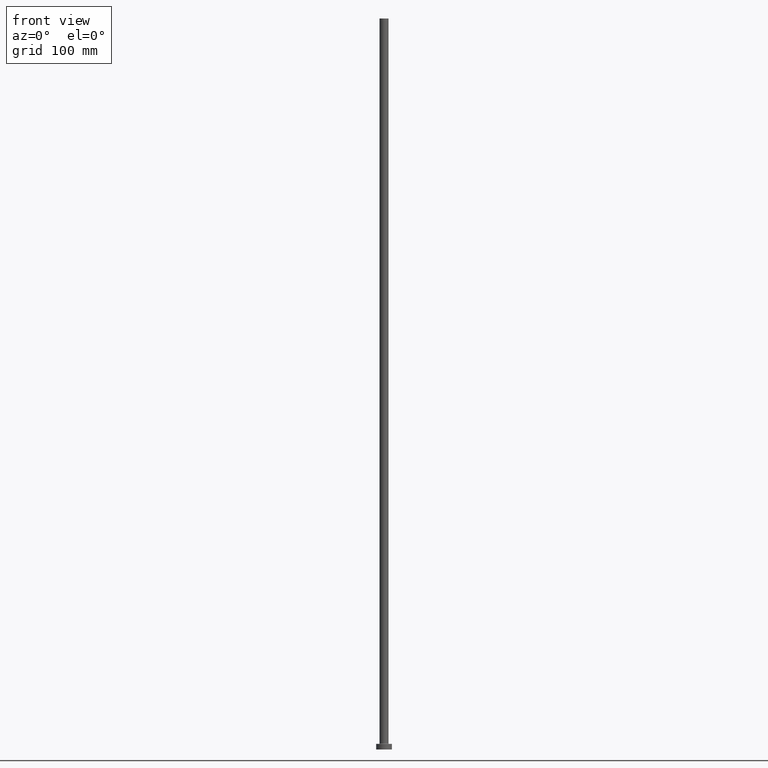
[diagram: clean part render]
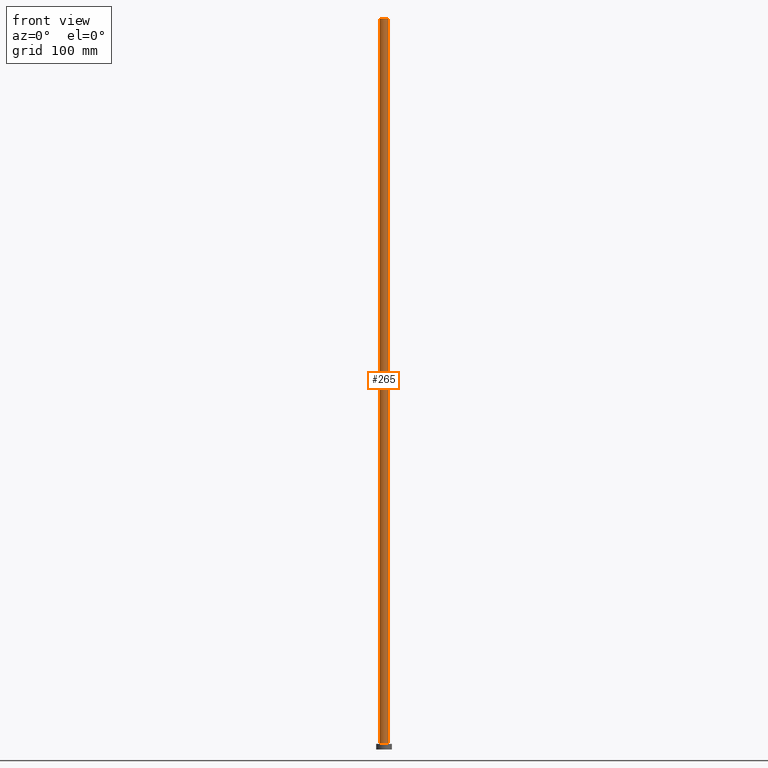
[diagram: same view with one face highlighted and labeled with its STEP entity id]
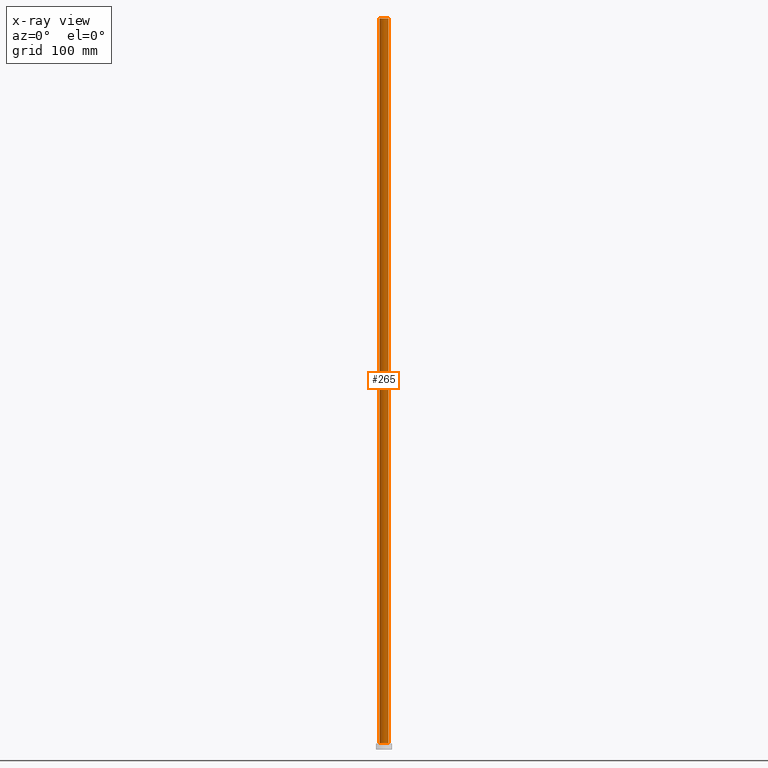
[diagram: x-ray of the same camera — body ghosted, the highlighted face saturated]
A machine part, front view. The second image highlights one B-rep face of the part: STEP entity #265.
The next image is the same camera in x-ray: the body ghosted, the highlighted face saturated — about 0% of this face is hidden behind the body in this view.
In plain terms, the highlighted cylindrical surface (edge-blend (fillet) strip) has radius 4 mm, axis along (-0, -0, -1).
Its self-contained STEP definition (entity closure, byte-faithful):
#5 = DIRECTION ( 'NONE',  ( -1.000000000000000000, 0.000000000000000000, 0.000000000000000000 ) ) ;
#20 = LINE ( 'NONE', #339, #244 ) ;
#43 = CARTESIAN_POINT ( 'NONE',  ( 0.000000000000000000, 0.000000000000000000, 650.0000000000000000 ) ) ;
#52 = ORIENTED_EDGE ( 'NONE', *, *, #347, .F. ) ;
#56 = VECTOR ( 'NONE', #147, 1000.000000000000000 ) ;
#63 = DIRECTION ( 'NONE',  ( 1.000000000000000000, 0.000000000000000000, 0.000000000000000000 ) ) ;
#67 = EDGE_CURVE ( 'NONE', #166, #298, #341, .T. ) ;
#89 = CARTESIAN_POINT ( 'NONE',  ( -4.000000000000000000, 0.000000000000000000, 650.0000000000000000 ) ) ;
#105 = ORIENTED_EDGE ( 'NONE', *, *, #439, .F. ) ;
#109 = CARTESIAN_POINT ( 'NONE',  ( 4.000000000000000000, 4.898587196589411843E-16, 5.499999999999949374 ) ) ;
#130 = AXIS2_PLACEMENT_3D ( 'NONE', #371, #448, #63 ) ;
#147 = DIRECTION ( 'NONE',  ( -0.000000000000000000, -0.000000000000000000, -1.000000000000000000 ) ) ;
#150 = AXIS2_PLACEMENT_3D ( 'NONE', #43, #392, #5 ) ;
#166 = VERTEX_POINT ( 'NONE', #212 ) ;
#177 = VERTEX_POINT ( 'NONE', #396 ) ;
#195 = ORIENTED_EDGE ( 'NONE', *, *, #287, .T. ) ;
#212 = CARTESIAN_POINT ( 'NONE',  ( -4.000000000000000000, 0.000000000000000000, 5.499999999999949374 ) ) ;
#238 = CIRCLE ( 'NONE', #130, 4.000000000000000000 ) ;
#244 = VECTOR ( 'NONE', #296, 1000.000000000000000 ) ;
#249 = CYLINDRICAL_SURFACE ( 'NONE', #150, 4.000000000000000000 ) ;
#265 = ADVANCED_FACE ( 'NONE', ( #438 ), #249, .T. ) ;
#273 = ORIENTED_EDGE ( 'NONE', *, *, #67, .T. ) ;
#287 = EDGE_CURVE ( 'NONE', #421, #166, #398, .T. ) ;
#296 = DIRECTION ( 'NONE',  ( -0.000000000000000000, -0.000000000000000000, -1.000000000000000000 ) ) ;
#298 = VERTEX_POINT ( 'NONE', #109 ) ;
#316 = EDGE_LOOP ( 'NONE', ( #105, #52, #195, #273 ) ) ;
#339 = CARTESIAN_POINT ( 'NONE',  ( 4.000000000000000000, 4.898587196589411843E-16, 650.0000000000000000 ) ) ;
#341 = CIRCLE ( 'NONE', #418, 4.000000000000000000 ) ;
#347 = EDGE_CURVE ( 'NONE', #421, #177, #238, .T. ) ;
#371 = CARTESIAN_POINT ( 'NONE',  ( 0.000000000000000000, 0.000000000000000000, 650.0000000000000000 ) ) ;
#390 = DIRECTION ( 'NONE',  ( 0.000000000000000000, 0.000000000000000000, 1.000000000000000000 ) ) ;
#392 = DIRECTION ( 'NONE',  ( -0.000000000000000000, -0.000000000000000000, -1.000000000000000000 ) ) ;
#395 = CARTESIAN_POINT ( 'NONE',  ( -4.000000000000000000, 0.000000000000000000, 650.0000000000000000 ) ) ;
#396 = CARTESIAN_POINT ( 'NONE',  ( 4.000000000000000000, 4.898587196589411843E-16, 650.0000000000000000 ) ) ;
#398 = LINE ( 'NONE', #395, #56 ) ;
#418 = AXIS2_PLACEMENT_3D ( 'NONE', #458, #390, #420 ) ;
#420 = DIRECTION ( 'NONE',  ( 1.000000000000000000, 0.000000000000000000, 0.000000000000000000 ) ) ;
#421 = VERTEX_POINT ( 'NONE', #89 ) ;
#438 = FACE_OUTER_BOUND ( 'NONE', #316, .T. ) ;
#439 = EDGE_CURVE ( 'NONE', #177, #298, #20, .T. ) ;
#448 = DIRECTION ( 'NONE',  ( 0.000000000000000000, 0.000000000000000000, 1.000000000000000000 ) ) ;
#458 = CARTESIAN_POINT ( 'NONE',  ( 0.000000000000000000, 0.000000000000000000, 5.499999999999949374 ) ) ;